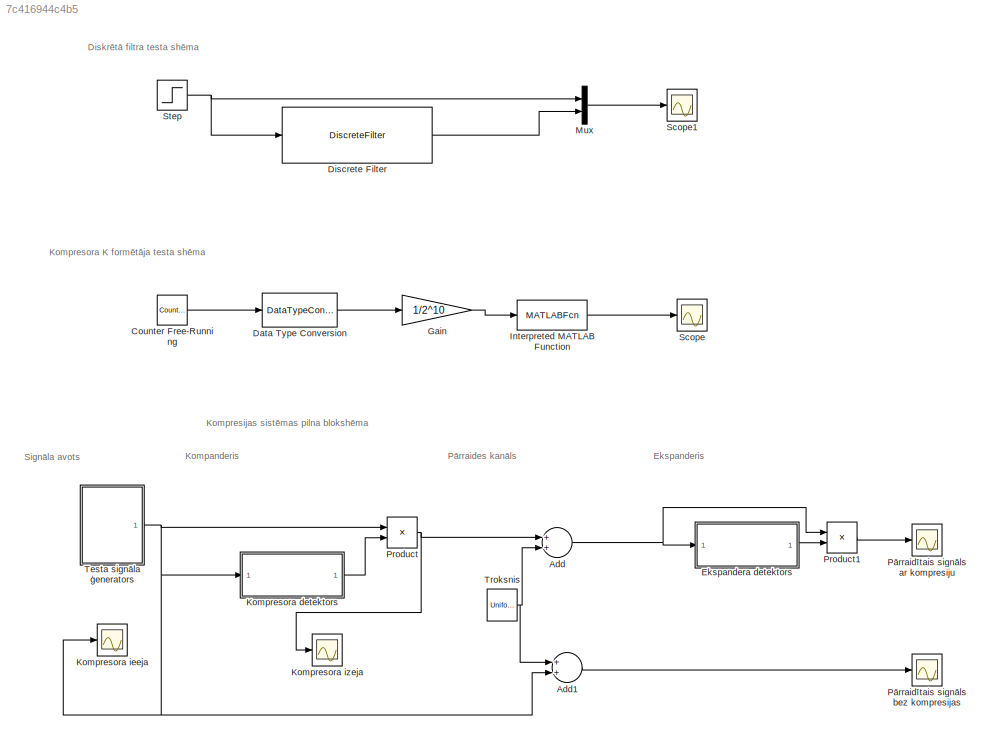
MODEL slx_7c416944c4b5
KIND model
CONFIG AbsTol = auto
CONFIG EnableMultiTasking = off
CONFIG FixedStep = auto
CONFIG MaxStep = auto
CONFIG MinStep = auto
CONFIG RelTol = 1e-3
CONFIG SampleTimeConstraint = Unconstrained
CONFIG Solver = VariableStepAuto
CONFIG SolverName = VariableStepAuto
CONFIG StartTime = 0.0
CONFIG StopTime = 0.1
BLOCK [Sum] Add
  InputSameDT = off
  OutDataTypeStr = Inherit: Inherit via internal rule
  Ports = [2, 1]
  SaturateOnIntegerOverflow = off
BLOCK [Sum] Add1
  InputSameDT = off
  OutDataTypeStr = Inherit: Inherit via internal rule
  Ports = [2, 1]
  SaturateOnIntegerOverflow = off
BLOCK [Reference] Counter Free-Running  REF=simulink/Sources/Counter
Free-Running
  Ports = [0, 1]
  SourceBlock = simulink/Sources/Counter\nFree-Running
  SourceProductBaseCode = SL
  SourceProductName = Simulink
  SourceType = Counter Free-Running
BLOCK [DataTypeConversion] Data Type Conversion
  OutDataTypeStr = double
  RndMeth = Floor
  SaturateOnIntegerOverflow = off
BLOCK [DiscreteFilter] Discrete Filter
  Denominator = [(1+2*tau*Fs), (1-2*tau*Fs)]
  FilterStructure = Direct form I
  InputPortMap = u0
  Numerator = [1,1]
  Ports = [1, 1]
  SampleTime = 1/Fs
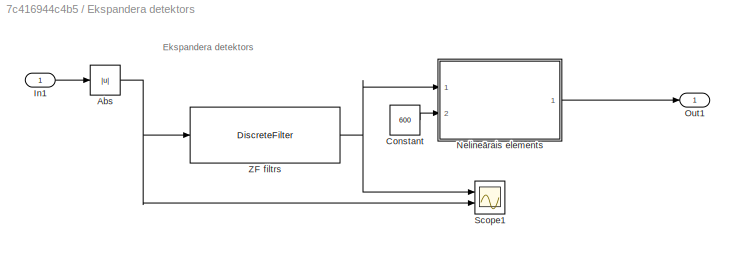
BLOCK [SubSystem] Ekspandera detektors
  Ports = [1, 1]
  RequestExecContextInheritance = off
  Variant = off
BLOCK [Abs] Ekspandera detektors/Abs
  SaturateOnIntegerOverflow = off
BLOCK [Constant] Ekspandera detektors/Constant
  Value = 600
BLOCK [Inport] Ekspandera detektors/In1
  IconDisplay = Port number
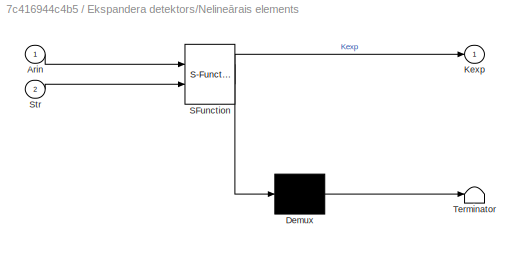
BLOCK [SubSystem] Ekspandera detektors/Nelineārais elements
  ErrorFcn = Stateflow.Translate.translate
  PermitHierarchicalResolution = ExplicitOnly
  Ports = [2, 1]
  RequestExecContextInheritance = off
  SFBlockType = MATLAB Function
  TreatAsAtomicUnit = on
  Variant = off
BLOCK [Demux] Ekspandera detektors/Nelineārais elements/ Demux 
  Outputs = 1
  Ports = [1, 1]
BLOCK [S-Function] Ekspandera detektors/Nelineārais elements/ SFunction 
  EnableBusSupport = on
  FunctionName = sf_sfun
  PortCounts = [2 2]
  Ports = [2, 2]
  SFcnIsStateOwnerBlock = off
  SFunctionDeploymentMode = off
  Tag = Stateflow S-Function ld1_simulink 1
BLOCK [Terminator] Ekspandera detektors/Nelineārais elements/ Terminator 
BLOCK [Inport] Ekspandera detektors/Nelineārais elements/Arin
  IconDisplay = Port number
BLOCK [Outport] Ekspandera detektors/Nelineārais elements/Kexp
  IconDisplay = Port number
BLOCK [Inport] Ekspandera detektors/Nelineārais elements/Str
  IconDisplay = Port number
  Port = 2
BLOCK [Outport] Ekspandera detektors/Out1
  IconDisplay = Port number
BLOCK [Scope] Ekspandera detektors/Scope1
  NumInputPorts = 2
  Ports = [2]
  ScopeSpecificationString = Simulink.scopes.TimeScopeBlockCfg('CurrentConfiguration', extmgr.ConfigurationSet(extmgr.Configuration('Core','General UI',true),extmgr.Configuration('Core','Source UI',true),extmgr.Configuration('Sources','WiredSimulink',true,'DataLoggingVariableName','ScopeData4'),extmgr.Configuration('Visuals','Time Domain',true,'SerializedDisplays',{struct('MinYLimReal','-0.10253','MaxYLimReal','1.28528','YLab...<+1421ch>
BLOCK [DiscreteFilter] Ekspandera detektors/ZF filtrs
  Denominator = [(1+2*tau*Fs), (1-2*tau*Fs)]
  FilterStructure = Direct form I
  InputPortMap = u0
  Numerator = [1,1]
  Ports = [1, 1]
  SampleTime = 1/Fs
BLOCK [Gain] Gain
  Gain = 1/2^10
  OutDataTypeStr = Inherit: Inherit via internal rule
  ParamDataTypeStr = Inherit: Inherit via internal rule
  SaturateOnIntegerOverflow = off
BLOCK [MATLABFcn] Interpreted MATLAB Function
  MATLABFcn = kcmpnd(u,600)
  OutputDimensions = 1
  Ports = [1, 1]
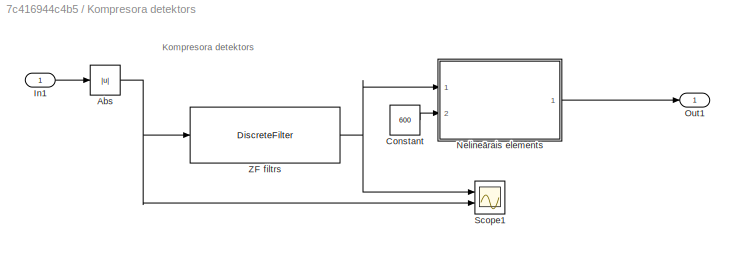
BLOCK [SubSystem] Kompresora detektors
  Ports = [1, 1]
  RequestExecContextInheritance = off
  Variant = off
BLOCK [Abs] Kompresora detektors/Abs
  SaturateOnIntegerOverflow = off
BLOCK [Constant] Kompresora detektors/Constant
  Value = 600
BLOCK [Inport] Kompresora detektors/In1
  IconDisplay = Port number
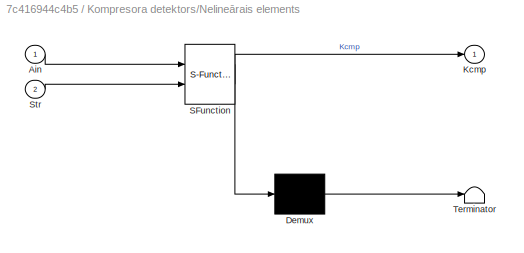
BLOCK [SubSystem] Kompresora detektors/Nelineārais elements
  ErrorFcn = Stateflow.Translate.translate
  PermitHierarchicalResolution = ExplicitOnly
  Ports = [2, 1]
  RequestExecContextInheritance = off
  SFBlockType = MATLAB Function
  TreatAsAtomicUnit = on
  Variant = off
BLOCK [Demux] Kompresora detektors/Nelineārais elements/ Demux 
  Outputs = 1
  Ports = [1, 1]
BLOCK [S-Function] Kompresora detektors/Nelineārais elements/ SFunction 
  EnableBusSupport = on
  FunctionName = sf_sfun
  PortCounts = [2 2]
  Ports = [2, 2]
  SFcnIsStateOwnerBlock = off
  SFunctionDeploymentMode = off
  Tag = Stateflow S-Function ld1_simulink 2
BLOCK [Terminator] Kompresora detektors/Nelineārais elements/ Terminator 
BLOCK [Inport] Kompresora detektors/Nelineārais elements/Ain
  IconDisplay = Port number
BLOCK [Outport] Kompresora detektors/Nelineārais elements/Kcmp
  IconDisplay = Port number
BLOCK [Inport] Kompresora detektors/Nelineārais elements/Str
  IconDisplay = Port number
  Port = 2
BLOCK [Outport] Kompresora detektors/Out1
  IconDisplay = Port number
BLOCK [Scope] Kompresora detektors/Scope1
  NumInputPorts = 2
  Ports = [2]
  ScopeSpecificationString = Simulink.scopes.TimeScopeBlockCfg('CurrentConfiguration', extmgr.ConfigurationSet(extmgr.Configuration('Core','General UI',true),extmgr.Configuration('Core','Source UI',true),extmgr.Configuration('Sources','WiredSimulink',true,'DataLoggingVariableName','ScopeData4'),extmgr.Configuration('Visuals','Time Domain',true,'SerializedDisplays',{struct('MinYLimReal','-0.08322','MaxYLimReal','0.74896','YLab...<+1402ch>
BLOCK [DiscreteFilter] Kompresora detektors/ZF filtrs
  Denominator = [(1+2*tau*Fs), (1-2*tau*Fs)]
  FilterStructure = Direct form I
  InputPortMap = u0
  Numerator = [1,1]
  Ports = [1, 1]
  SampleTime = 1/Fs
BLOCK [Scope] Kompresora ieeja 
  NumInputPorts = 1
  Ports = [1]
  ScopeSpecificationString = Simulink.scopes.TimeScopeBlockCfg('CurrentConfiguration', extmgr.ConfigurationSet(extmgr.Configuration('Core','General UI',true),extmgr.Configuration('Core','Source UI',true),extmgr.Configuration('Sources','WiredSimulink',true,'DataLoggingVariableName','ScopeData5'),extmgr.Configuration('Visuals','Time Domain',true,'SerializedDisplays',{struct('MinYLimReal','-0.83217','MaxYLimReal','0.83217','YLab...<+1458ch>
BLOCK [Scope] Kompresora izeja
  NumInputPorts = 1
  Ports = [1]
  ScopeSpecificationString = Simulink.scopes.TimeScopeBlockCfg('CurrentConfiguration', extmgr.ConfigurationSet(extmgr.Configuration('Core','General UI',true),extmgr.Configuration('Core','Source UI',true),extmgr.Configuration('Sources','WiredSimulink',true,'DataLoggingVariableName','ScopeData2'),extmgr.Configuration('Visuals','Time Domain',true,'SerializedDisplays',{struct('MinYLimReal','-12.1041','MaxYLimReal','108.93689','YL...<+1422ch>
BLOCK [Mux] Mux
  DisplayOption = bar
  Inputs = 2
  Ports = [2, 1]
BLOCK [Product] Product
  InputSameDT = off
  OutDataTypeStr = Inherit: Inherit via internal rule
  Ports = [2, 1]
  RndMeth = Floor
  SaturateOnIntegerOverflow = off
BLOCK [Product] Product1
  InputSameDT = off
  OutDataTypeStr = Inherit: Inherit via internal rule
  Ports = [2, 1]
  RndMeth = Floor
  SaturateOnIntegerOverflow = off
BLOCK [Scope] Pārraidītais signāls ar kompresiju
  NumInputPorts = 1
  Ports = [1]
  ScopeSpecificationString = Simulink.scopes.TimeScopeBlockCfg('CurrentConfiguration', extmgr.ConfigurationSet(extmgr.Configuration('Core','General UI',true),extmgr.Configuration('Core','Source UI',true),extmgr.Configuration('Sources','WiredSimulink',true,'DataLoggingVariableName','ScopeData6'),extmgr.Configuration('Visuals','Time Domain',true,'SerializedDisplays',{struct('MinYLimReal','-37.95453','MaxYLimReal','46.06991','YL...<+1447ch>
BLOCK [Scope] Pārraidītais signāls bez kompresijas
  NumInputPorts = 1
  Ports = [1]
  ScopeSpecificationString = Simulink.scopes.TimeScopeBlockCfg('CurrentConfiguration', extmgr.ConfigurationSet(extmgr.Configuration('Core','General UI',true),extmgr.Configuration('Core','Source UI',true),extmgr.Configuration('Sources','WiredSimulink',true,'DataLoggingVariableName','ScopeData3'),extmgr.Configuration('Visuals','Time Domain',true,'SerializedDisplays',{struct('MinYLimReal','-0.95668','MaxYLimReal','0.9559','YLabe...<+1409ch>
BLOCK [Scope] Scope
  NumInputPorts = 1
  Ports = [1]
  ScopeSpecificationString = Simulink.scopes.TimeScopeBlockCfg('CurrentConfiguration', extmgr.ConfigurationSet(extmgr.Configuration('Core','General UI',true),extmgr.Configuration('Core','Source UI',true),extmgr.Configuration('Sources','WiredSimulink',true),extmgr.Configuration('Visuals','Time Domain',true,'SerializedDisplays',{struct('MinYLimReal','-10.33677','MaxYLimReal','105.33807','YLabelReal','','MinYLimMag','0.00000','M...<+1386ch>
BLOCK [Scope] Scope1
  NumInputPorts = 1
  Ports = [1]
  ScopeSpecificationString = Simulink.scopes.TimeScopeBlockCfg('CurrentConfiguration', extmgr.ConfigurationSet(extmgr.Configuration('Core','General UI',true),extmgr.Configuration('Core','Source UI',true),extmgr.Configuration('Sources','WiredSimulink',true,'DataLoggingVariableName','ScopeData1'),extmgr.Configuration('Visuals','Time Domain',true,'SerializedDisplays',{struct('MinYLimReal','-0.05882','MaxYLimReal','1.11765','YLab...<+1381ch>
BLOCK [Step] Step
  After = 0
  Before = 1
  SampleTime = 1/Fs
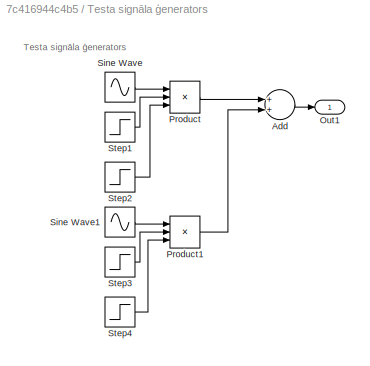
BLOCK [SubSystem] Testa signāla ģenerators
  Ports = [0, 1]
  RequestExecContextInheritance = off
  Variant = off
BLOCK [Sum] Testa signāla ģenerators/Add
  InputSameDT = off
  OutDataTypeStr = Inherit: Inherit via internal rule
  Ports = [2, 1]
  SaturateOnIntegerOverflow = off
BLOCK [Outport] Testa signāla ģenerators/Out1
  IconDisplay = Port number
BLOCK [Product] Testa signāla ģenerators/Product
  InputSameDT = off
  Inputs = 3
  OutDataTypeStr = Inherit: Inherit via internal rule
  Ports = [3, 1]
  RndMeth = Floor
  SaturateOnIntegerOverflow = off
BLOCK [Product] Testa signāla ģenerators/Product1
  InputSameDT = off
  Inputs = 3
  OutDataTypeStr = Inherit: Inherit via internal rule
  Ports = [3, 1]
  RndMeth = Floor
  SaturateOnIntegerOverflow = off
BLOCK [Sin] Testa signāla ģenerators/Sine Wave
  Amplitude = 0.7
  Frequency = 2*pi*Fs/10
  Ports = [0, 1]
  SampleTime = 0
BLOCK [Sin] Testa signāla ģenerators/Sine Wave1
  Amplitude = 0.3
  Frequency = 2*pi*Fs/10
  Ports = [0, 1]
  SampleTime = 0
BLOCK [Step] Testa signāla ģenerators/Step1
  SampleTime = 1/Fs
  Time = 0.005
BLOCK [Step] Testa signāla ģenerators/Step2
  After = 0
  Before = 1
  SampleTime = 1/Fs
  Time = 0.03
BLOCK [Step] Testa signāla ģenerators/Step3
  SampleTime = 1/Fs
  Time = 0.06
BLOCK [Step] Testa signāla ģenerators/Step4
  After = 0
  Before = 1
  SampleTime = 1/Fs
  Time = 0.9
BLOCK [UniformRandomNumber] Troksnis
  Maximum = 0.1
  Minimum = -0.1
  SampleTime = 1/Fs
  Seed = 123
ANNOTATION (root): Kompresijas sistēmas pilna blokshēma
ANNOTATION (root): Diskrētā filtra testa shēma
ANNOTATION (root): Ekspanderis
ANNOTATION (root): Kompanderis
ANNOTATION (root): Kompresora K formētāja testa shēma
ANNOTATION (root): Pārraides kanāls
ANNOTATION (root): Signāla avots
ANNOTATION Ekspandera detektors: Ekspandera detektors
ANNOTATION Kompresora detektors: Kompresora detektors
ANNOTATION Testa signāla ģenerators: Testa signāla ģenerators
LINE Add1:1 -> Pārraidītais signāls bez kompresijas:1
NET Add:1 -> Ekspandera detektors:1, Product1:1
LINE Counter Free-Running:1 -> Data Type Conversion:1
LINE Data Type Conversion:1 -> Gain:1
LINE Discrete Filter:1 -> Mux:2
NET Ekspandera detektors/Abs:1 -> Ekspandera detektors/Scope1:2, Ekspandera detektors/ZF filtrs:1
LINE Ekspandera detektors/Constant:1 -> Ekspandera detektors/Nelineārais elements:2
LINE Ekspandera detektors/In1:1 -> Ekspandera detektors/Abs:1
LINE Ekspandera detektors/Nelineārais elements:1 -> Ekspandera detektors/Out1:1
NET Ekspandera detektors/ZF filtrs:1 -> Ekspandera detektors/Nelineārais elements:1, Ekspandera detektors/Scope1:1
LINE Ekspandera detektors:1 -> Product1:2
LINE Gain:1 -> Interpreted MATLAB Function:1
LINE Interpreted MATLAB Function:1 -> Scope:1
NET Kompresora detektors/Abs:1 -> Kompresora detektors/Scope1:2, Kompresora detektors/ZF filtrs:1
LINE Kompresora detektors/Constant:1 -> Kompresora detektors/Nelineārais elements:2
LINE Kompresora detektors/In1:1 -> Kompresora detektors/Abs:1
LINE Kompresora detektors/Nelineārais elements:1 -> Kompresora detektors/Out1:1
NET Kompresora detektors/ZF filtrs:1 -> Kompresora detektors/Nelineārais elements:1, Kompresora detektors/Scope1:1
LINE Kompresora detektors:1 -> Product:2
LINE Mux:1 -> Scope1:1
LINE Product1:1 -> Pārraidītais signāls ar kompresiju:1
NET Product:1 -> Add:1, Kompresora izeja:1
NET Step:1 -> Discrete Filter:1, Mux:1
LINE Testa signāla ģenerators/Add:1 -> Testa signāla ģenerators/Out1:1
LINE Testa signāla ģenerators/Product1:1 -> Testa signāla ģenerators/Add:2
LINE Testa signāla ģenerators/Product:1 -> Testa signāla ģenerators/Add:1
LINE Testa signāla ģenerators/Sine Wave1:1 -> Testa signāla ģenerators/Product1:1
LINE Testa signāla ģenerators/Sine Wave:1 -> Testa signāla ģenerators/Product:1
LINE Testa signāla ģenerators/Step1:1 -> Testa signāla ģenerators/Product:2
LINE Testa signāla ģenerators/Step2:1 -> Testa signāla ģenerators/Product:3
LINE Testa signāla ģenerators/Step3:1 -> Testa signāla ģenerators/Product1:2
LINE Testa signāla ģenerators/Step4:1 -> Testa signāla ģenerators/Product1:3
NET Testa signāla ģenerators:1 -> Add1:2, Kompresora detektors:1, Kompresora ieeja :1, Product:1
NET Troksnis:1 -> Add1:1, Add:2
note: NET lines group one-source signal fan-out (src -> all destinations, sorted); 1:1 wires keep LINE
CHART Ekspandera detektors/Nelineārais elements states=1 transitions=1
  STATE_LABEL 'eML_blk_kernel()'
  STATE_LABEL 'SCRIPT:\nfunction Kexp = kexpnd(Arin,Str)\n% Kompresora pastiprinajuma koeficients\nKexp=zeros(size(Arin));\n% Kexp=((Str + 1).^Arin - 1)./Str;\n% Kexp = (exp(Arin.*log(Str+1)) - 1 ) ./ Str;\nKexp =  ((Str + 1).^Arin - 1)./(Arin.*Str);'
CHART Kompresora detektors/Nelineārais elements states=1 transitions=1
  STATE_LABEL 'eML_blk_kernel()'
  STATE_LABEL 'SCRIPT:\nfunction Kcmp = kcmpnd(Ain,Str)\n% Kompresora pastiprinajuma koeficients\nKcmp=zeros(size(Ain));\nKcmp(Ain>0)=log10(Str*Ain(Ain>0)+1)./ ...\n    Ain(Ain>0)/log10(Str+1);\nKcmp(Ain<=0) = Str/log(Str+1);'
